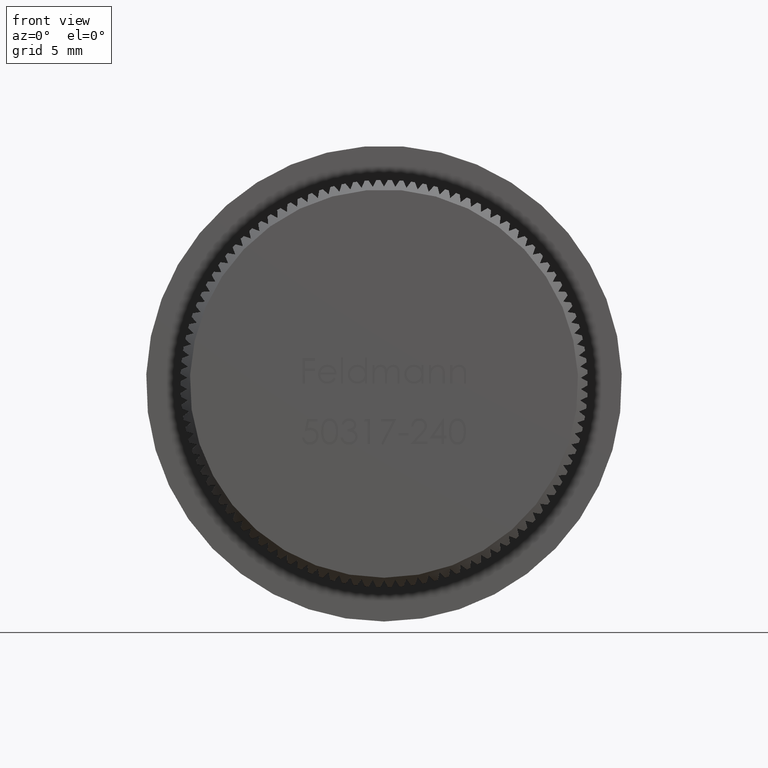
[diagram: clean part render]
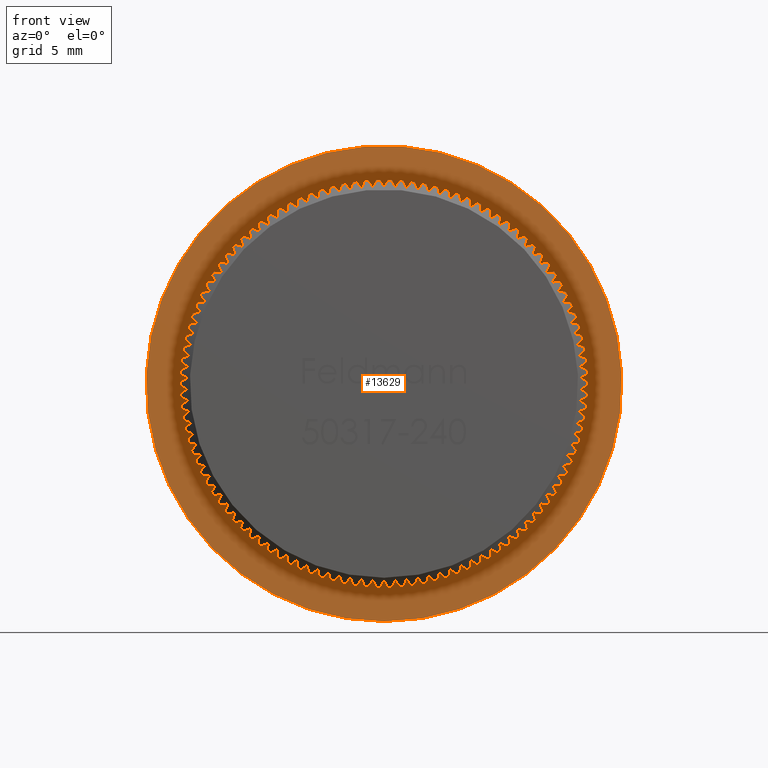
[diagram: same view with one face highlighted and labeled with its STEP entity id]
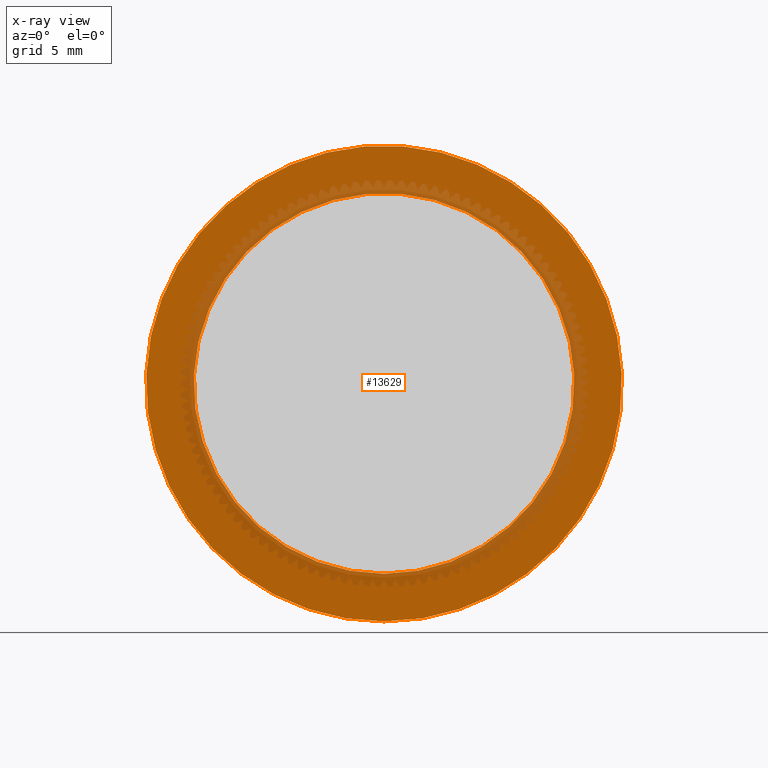
[diagram: x-ray of the same camera — body ghosted, the highlighted face saturated]
A machine part, front view. The second image highlights one B-rep face of the part: STEP entity #13629.
The next image is the same camera in x-ray: the body ghosted, the highlighted face saturated — about 22% of this face is hidden behind the body in this view.
In plain terms, the highlighted planar face has unit normal (0, -1, -0).
Its self-contained STEP definition (entity closure, byte-faithful):
#339 = PLANE ( 'NONE',  #11985 ) ;
#526 = EDGE_CURVE ( 'NONE', #2795, #2795, #7743, .T. ) ;
#686 = FACE_OUTER_BOUND ( 'NONE', #5995, .T. ) ;
#2795 = VERTEX_POINT ( 'NONE', #21616 ) ;
#4007 = CARTESIAN_POINT ( 'NONE',  ( 10.00000000000000000, 8.000000000000000000, 0.000000000000000000 ) ) ;
#4238 = CIRCLE ( 'NONE', #8973, 12.50000000000000000 ) ;
#4795 = ORIENTED_EDGE ( 'NONE', *, *, #18647, .T. ) ;
#5995 = EDGE_LOOP ( 'NONE', ( #4795 ) ) ;
#6427 = EDGE_LOOP ( 'NONE', ( #22947 ) ) ;
#6524 = VERTEX_POINT ( 'NONE', #16251 ) ;
#7743 = CIRCLE ( 'NONE', #22690, 10.00000000000000000 ) ;
#7900 = CARTESIAN_POINT ( 'NONE',  ( 0.000000000000000000, 8.000000000000000000, 0.000000000000000000 ) ) ;
#8973 = AXIS2_PLACEMENT_3D ( 'NONE', #7900, #13465, #20893 ) ;
#9655 = DIRECTION ( 'NONE',  ( 0.000000000000000000, 0.000000000000000000, -1.000000000000000000 ) ) ;
#11985 = AXIS2_PLACEMENT_3D ( 'NONE', #4007, #20585, #9655 ) ;
#13465 = DIRECTION ( 'NONE',  ( -0.000000000000000000, -1.000000000000000000, -0.000000000000000000 ) ) ;
#13629 = ADVANCED_FACE ( 'NONE', ( #686, #14091 ), #339, .T. ) ;
#13870 = DIRECTION ( 'NONE',  ( -0.000000000000000000, -1.000000000000000000, -0.000000000000000000 ) ) ;
#14091 = FACE_BOUND ( 'NONE', #6427, .T. ) ;
#16251 = CARTESIAN_POINT ( 'NONE',  ( 0.000000000000000000, 8.000000000000000000, -12.50000000000000000 ) ) ;
#17596 = DIRECTION ( 'NONE',  ( 0.000000000000000000, 0.000000000000000000, -1.000000000000000000 ) ) ;
#18647 = EDGE_CURVE ( 'NONE', #6524, #6524, #4238, .T. ) ;
#20585 = DIRECTION ( 'NONE',  ( 0.000000000000000000, -1.000000000000000000, -0.000000000000000000 ) ) ;
#20893 = DIRECTION ( 'NONE',  ( 0.000000000000000000, 0.000000000000000000, -1.000000000000000000 ) ) ;
#21616 = CARTESIAN_POINT ( 'NONE',  ( 0.000000000000000000, 8.000000000000000000, -10.00000000000000000 ) ) ;
#22690 = AXIS2_PLACEMENT_3D ( 'NONE', #23001, #13870, #17596 ) ;
#22947 = ORIENTED_EDGE ( 'NONE', *, *, #526, .F. ) ;
#23001 = CARTESIAN_POINT ( 'NONE',  ( 0.000000000000000000, 8.000000000000000000, 0.000000000000000000 ) ) ;